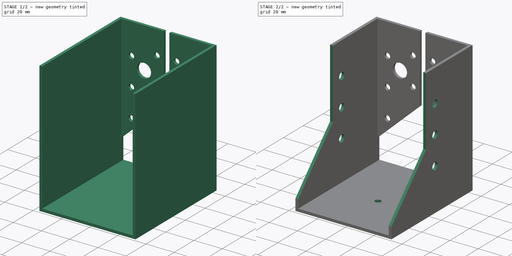
[diagram: build sequence overview — one tinted view per stage of 2, left to right]
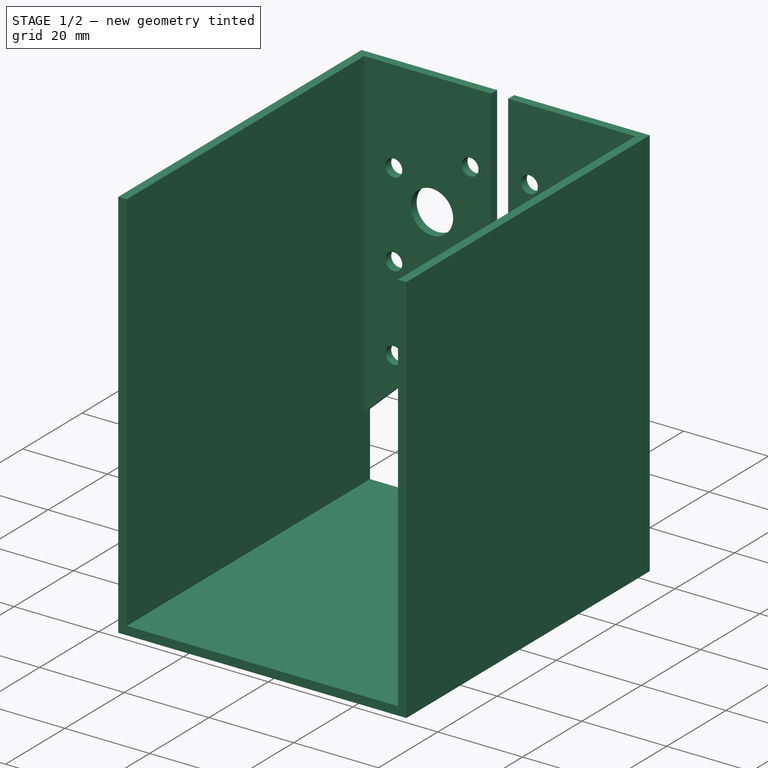
[diagram: stage 1 of 2 — iso view after this stage's code; geometry added in this stage tinted green]
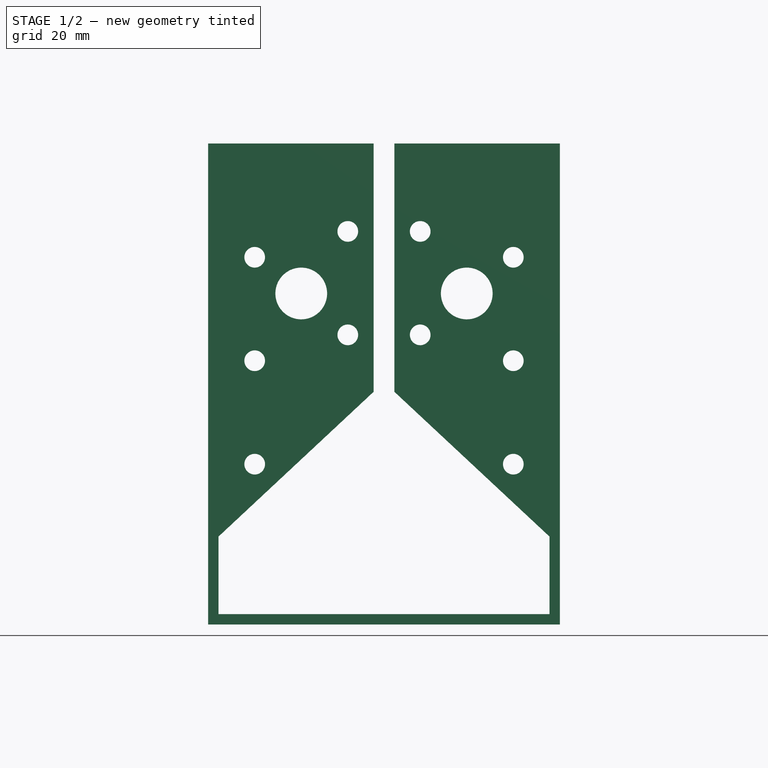
[diagram: stage 1 of 2 — front view after this stage's code; geometry added in this stage tinted green]
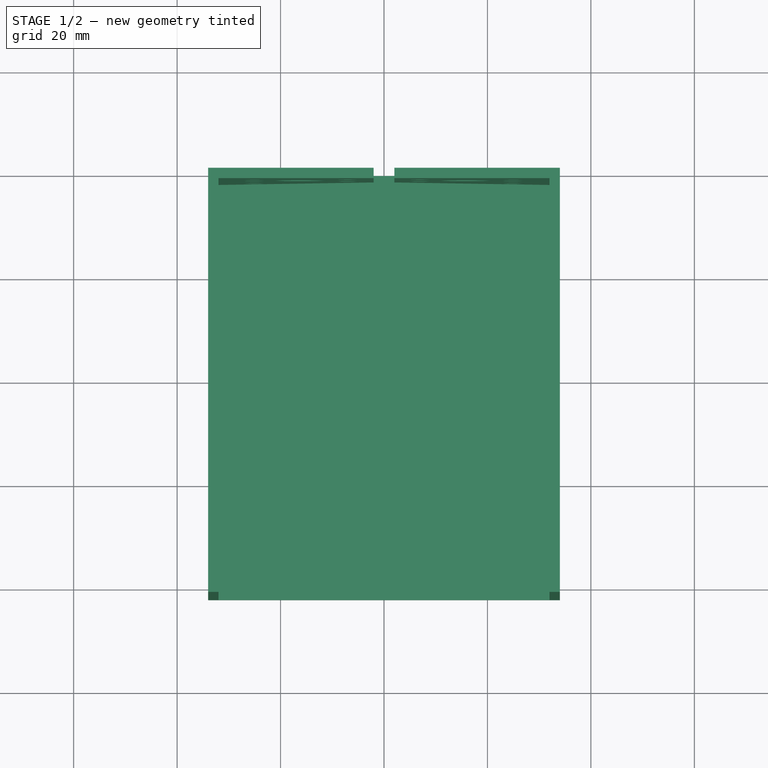
[diagram: stage 1 of 2 — top view after this stage's code; geometry added in this stage tinted green]
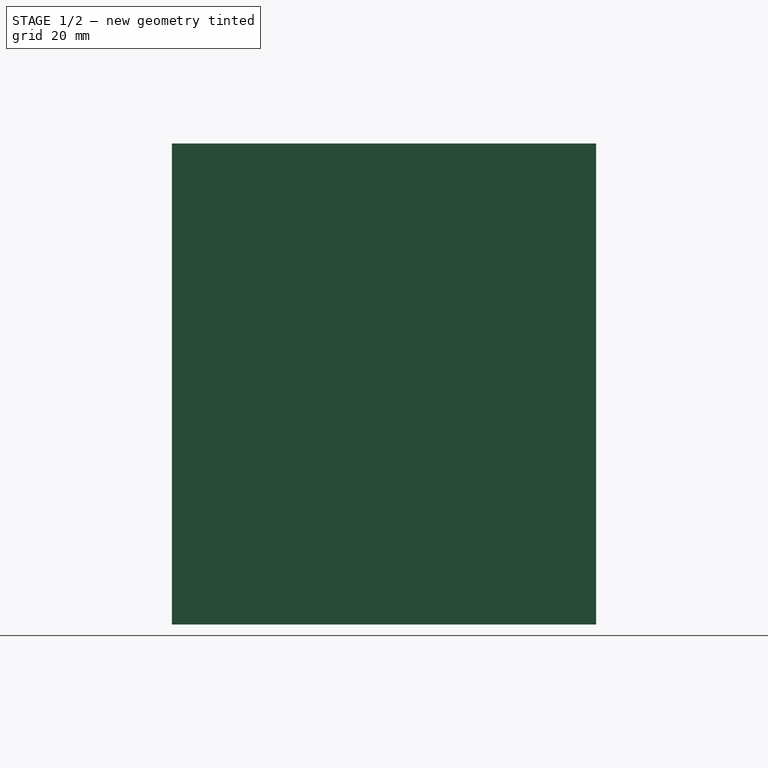
[diagram: stage 1 of 2 — right view after this stage's code; geometry added in this stage tinted green]
FCSTD DOCUMENT  (FreeCAD 0.15R4671 (Git))
Label: SAIT250_L64_H93
License: All rights reserved
LicenseURL: http://en.wikipedia.org/wiki/All_rights_reserved
objects: Sketcher::SketchObject×4, PartDesign::Pad×2, PartDesign::Pocket×2
note: 12 computed .brp shape members not serialized (recipe doc carries the construction recipe); baked Part::Feature solids carry a one-line shape summary decoded from their .brp

FEATURE [Sketcher::SketchObject] Sketch
  Placement = pos=(0,0,0) rot=(1,0,0;1.5708rad)
  sketch-geometry (24):
    g0: LineSegment StartX=2 StartY=93 StartZ=0 EndX=2 EndY=45 EndZ=0
    g1: LineSegment StartX=2 StartY=93 StartZ=0 EndX=34 EndY=93 EndZ=0
    g2: LineSegment StartX=34 StartY=93 StartZ=0 EndX=34 EndY=0 EndZ=0
    g3: LineSegment StartX=32 StartY=2 StartZ=0 EndX=-32 EndY=2 EndZ=0
    g4: LineSegment StartX=34 StartY=0 StartZ=0 EndX=-34 EndY=0 EndZ=0
    g5: LineSegment StartX=-34 StartY=0 StartZ=0 EndX=-34 EndY=93 EndZ=0
    g6: LineSegment StartX=-34 StartY=93 StartZ=0 EndX=-2 EndY=93 EndZ=0
    g7: LineSegment StartX=-2 StartY=93 StartZ=0 EndX=-2 EndY=45 EndZ=0
    g8: LineSegment StartX=32 StartY=2 StartZ=0 EndX=32 EndY=17 EndZ=0
    g9: LineSegment StartX=2 StartY=45 StartZ=0 EndX=32 EndY=17 EndZ=0
    g10: LineSegment StartX=-32 StartY=2 StartZ=0 EndX=-32 EndY=17 EndZ=0
    g11: LineSegment StartX=-32 StartY=17 StartZ=0 EndX=-2 EndY=45 EndZ=0
    g12: Circle CenterX=7 CenterY=76 CenterZ=0 NormalX=0 NormalY=0 NormalZ=1 Radius=2
    g13: Circle CenterX=7 CenterY=56 CenterZ=0 NormalX=0 NormalY=0 NormalZ=1 Radius=2
    g14: Circle CenterX=25 CenterY=71 CenterZ=0 NormalX=0 NormalY=0 NormalZ=1 Radius=2
    g15: Circle CenterX=25 CenterY=51 CenterZ=0 NormalX=0 NormalY=0 NormalZ=1 Radius=2
    g16: Circle CenterX=25 CenterY=31 CenterZ=0 NormalX=0 NormalY=0 NormalZ=1 Radius=2
    g17: Circle CenterX=16 CenterY=64 CenterZ=0 NormalX=0 NormalY=0 NormalZ=1 Radius=5
    g18: Circle CenterX=-7 CenterY=76 CenterZ=0 NormalX=0 NormalY=0 NormalZ=1 Radius=2
    g19: Circle CenterX=-7 CenterY=56 CenterZ=0 NormalX=0 NormalY=0 NormalZ=1 Radius=2
    g20: Circle CenterX=-25 CenterY=71 CenterZ=0 NormalX=0 NormalY=0 NormalZ=1 Radius=2
    g21: Circle CenterX=-25 CenterY=51 CenterZ=0 NormalX=0 NormalY=0 NormalZ=1 Radius=2
    g22: Circle CenterX=-25 CenterY=31 CenterZ=0 NormalX=0 NormalY=0 NormalZ=1 Radius=2
    g23: Circle CenterX=-16 CenterY=64 CenterZ=0 NormalX=0 NormalY=0 NormalZ=1 Radius=5
  constraints (65):
    c: Vertical(g0)
    c: DistanceX(g-1,g0) = 2
    c: Coincident(g1,g0)
    c: Horizontal(g1)
    c: DistanceX(g-1,g1) = 34
    c: DistanceY(g-1,g0) = 93
    c: Coincident(g2,g1)
    c: PointOnObject(g2,g-1)
    c: Vertical(g2)
    c: DistanceX(g3,g2) = 2
    c: DistanceY(g3,g2) = -2
    c: Horizontal(g3)
    c: Coincident(g4,g2)
    c: Horizontal(g4)
    c: Coincident(g5,g4)
    c: Vertical(g5)
    c: Coincident(g6,g5)
    c: Horizontal(g6)
    c: Coincident(g7,g6)
    c: Vertical(g7)
    c: Symmetric(g0,g6,g-2)
    c: Symmetric(g1,g5,g-2)
    c: Symmetric(g0,g7,g-2)
    c: Symmetric(g3,g3,g-2)
    c: DistanceY(g-1,g0) = 45
    c: Coincident(g8,g3)
    c: Vertical(g8)
    c: DistanceY(g3,g8) = 15
    c: Coincident(g9,g0)
    c: Coincident(g9,g8)
    c: Coincident(g10,g3)
    c: Vertical(g10)
    c: Coincident(g11,g10)
    c: Coincident(g11,g7)
    c: Symmetric(g8,g10,g-2)
    c: Radius(g17) = 5
    c: Equal(g14,g15)
    c: Equal(g15,g16)
    c: Equal(g16,g13)
    c: Equal(g13,g12)
    c: Radius(g14) = 2
    c: DistanceY(g13,g12) = 20
    c: DistanceY(g16,g15) = 20
    c: DistanceY(g15,g14) = 20
    c: Equal(g22,g19)
    c: Equal(g19,g21)
    c: Equal(g21,g20)
    c: Equal(g20,g18)
    c: Equal(g18,g14)
    c: Equal(g23,g17)
    c: Symmetric(g12,g18,g-2)
    c: Symmetric(g20,g14,g-2)
    c: Symmetric(g23,g17,g-2)
    c: Symmetric(g21,g15,g-2)
    c: Symmetric(g19,g13,g-2)
    c: Symmetric(g22,g16,g-2)
    c: DistanceX(g12,g17) = 9
    c: DistanceX(g17,g14) = 9
    c: DistanceX(g-1,g12) = 7
    c: DistanceX(g13,g17) = 9
    c: DistanceX(g17,g15) = 9
    c: DistanceX(g16,g17) = -9
    c: DistanceY(g-1,g17) = 64
    c: DistanceY(g-1,g16) = 31
    c: DistanceY(g-1,g13) = 56
FEATURE [PartDesign::Pad] Pad
  Length = 2
  Length2 = 100
  Placement = pos=(0,0,0) rot=(1,0,0;1.5708rad)
  Sketch = -> Sketch
  Type = 0
FEATURE [Sketcher::SketchObject] Sketch001
  ExternalGeometry = -> [Pad]
  Placement = pos=(0,-2,0) rot=(1,0,0;1.5708rad)
  Support = -> Pad [Face26]
  sketch-geometry (8):
    g0: LineSegment StartX=32 StartY=93 StartZ=0 EndX=34 EndY=93 EndZ=0
    g1: LineSegment StartX=34 StartY=93 StartZ=0 EndX=34 EndY=0 EndZ=0
    g2: LineSegment StartX=34 StartY=0 StartZ=0 EndX=-34 EndY=0 EndZ=0
    g3: LineSegment StartX=-34 StartY=0 StartZ=0 EndX=-34 EndY=93 EndZ=0
    g4: LineSegment StartX=-34 StartY=93 StartZ=0 EndX=-32 EndY=93 EndZ=0
    g5: LineSegment StartX=-32 StartY=93 StartZ=0 EndX=-32 EndY=2 EndZ=0
    g6: LineSegment StartX=32 StartY=93 StartZ=0 EndX=32 EndY=2 EndZ=0
    g7: LineSegment StartX=-32 StartY=2 StartZ=0 EndX=32 EndY=2 EndZ=0
  constraints (23):
    c: Horizontal(g0)
    c: Coincident(g1,g0)
    c: Vertical(g1)
    c: Coincident(g2,g1)
    c: Horizontal(g2)
    c: Coincident(g3,g2)
    c: Vertical(g3)
    c: Coincident(g4,g3)
    c: Horizontal(g4)
    c: Coincident(g5,g4)
    c: Vertical(g5)
    c: Coincident(g6,g0)
    c: Vertical(g6)
    c: Coincident(g7,g5)
    c: Coincident(g7,g6)
    c: Horizontal(g7)
    c: DistanceX(g0,g0) = 2
    c: DistanceY(g6,g1) = -2
    c: Equal(g0,g4)
    c: Coincident(g0,g-3)
    c: Coincident(g1,g-3)
    c: Coincident(g2,g-4)
    c: Coincident(g3,g-4)
FEATURE [PartDesign::Pad] Pad001
  Length = 80
  Length2 = 100
  Placement = pos=(0,0,0) rot=(1,0,0;1.5708rad)
  Sketch = -> Sketch001
  Type = 0
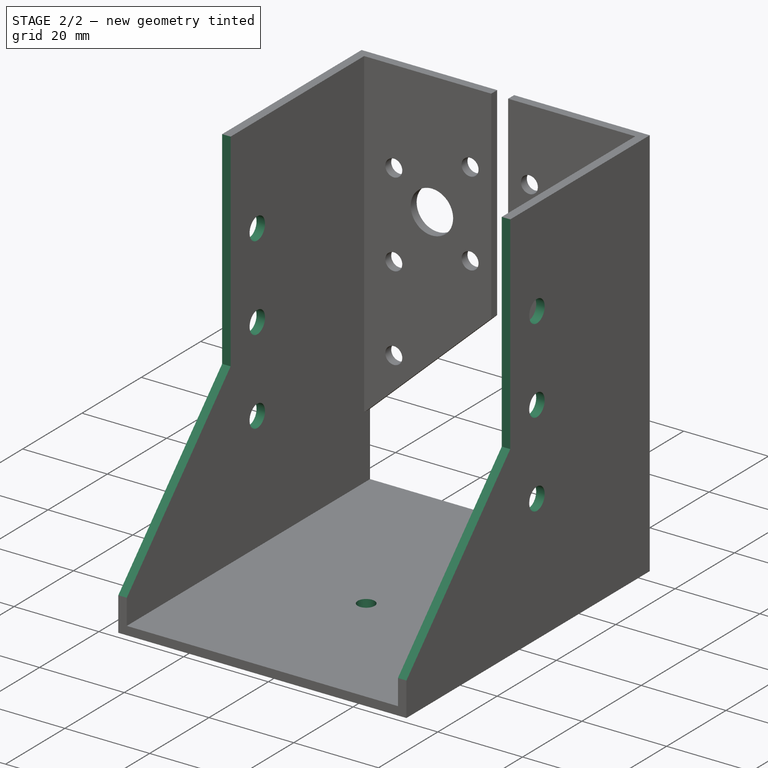
[diagram: stage 2 of 2 — iso view after this stage's code; geometry added in this stage tinted green]
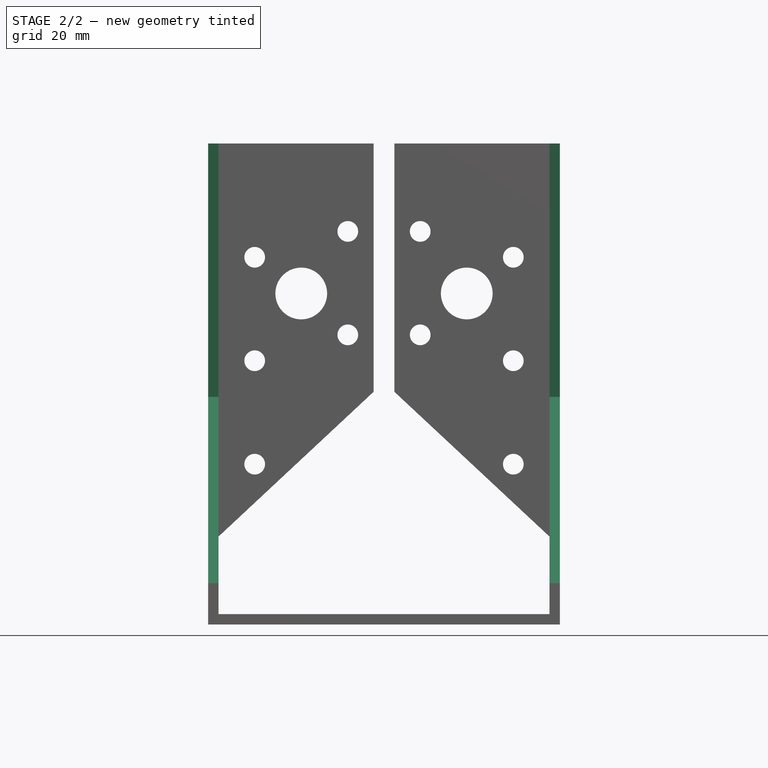
[diagram: stage 2 of 2 — front view after this stage's code; geometry added in this stage tinted green]
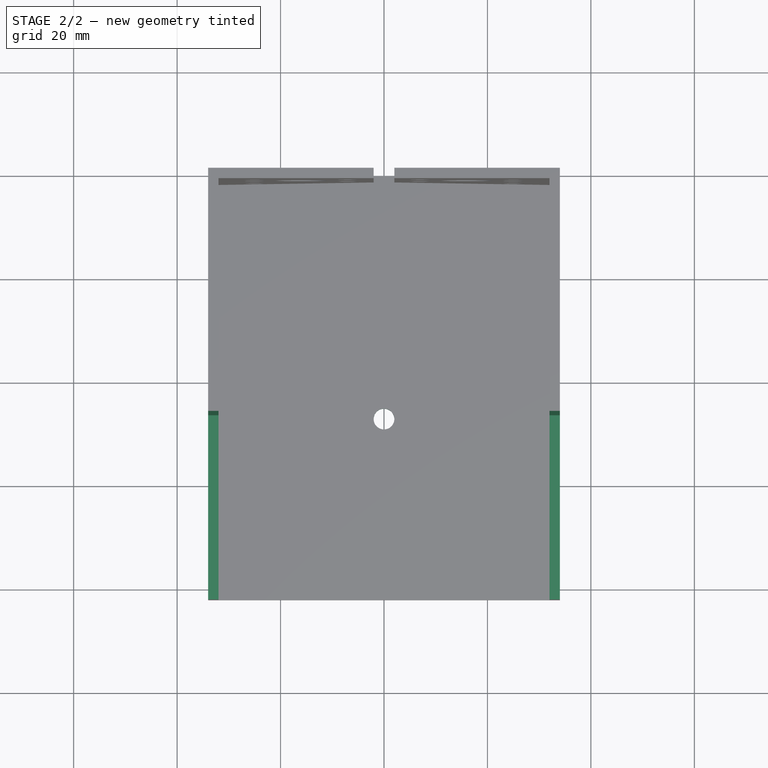
[diagram: stage 2 of 2 — top view after this stage's code; geometry added in this stage tinted green]
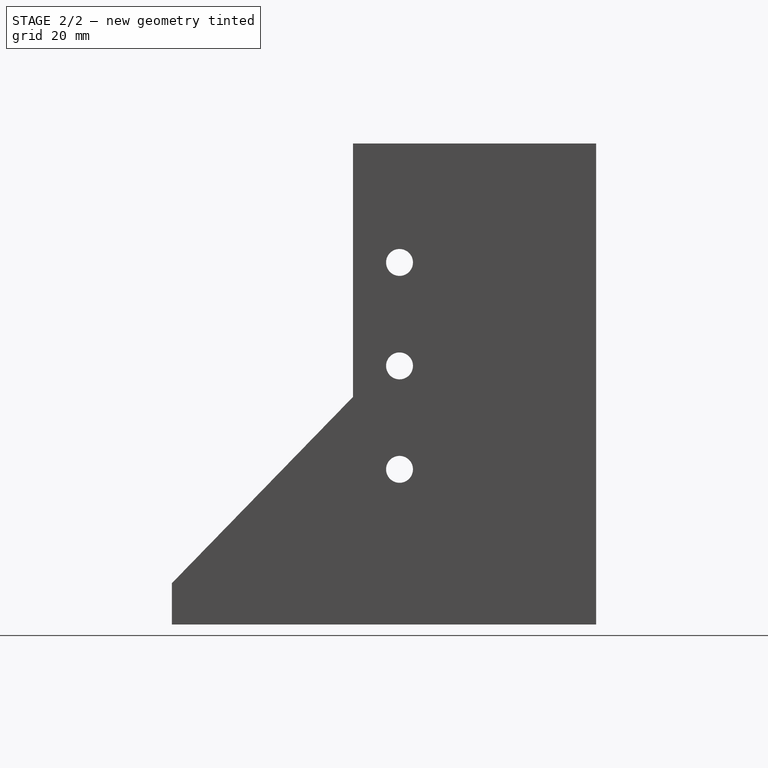
[diagram: stage 2 of 2 — right view after this stage's code; geometry added in this stage tinted green]
FEATURE [Sketcher::SketchObject] Sketch002
  ExternalGeometry = -> [Pad001]
  Placement = pos=(-34,0,0) rot=(0.707107,0,-0.707107;3.14159rad)
  Support = -> Pad001 [Face35]
  sketch-geometry (7):
    g0: LineSegment StartX=-93 StartY=82 StartZ=0 EndX=-8 EndY=82 EndZ=0
    g1: LineSegment StartX=-8 StartY=82 StartZ=0 EndX=-44 EndY=47 EndZ=0
    g2: LineSegment StartX=-93 StartY=82 StartZ=0 EndX=-93 EndY=47 EndZ=0
    g3: LineSegment StartX=-93 StartY=47 StartZ=0 EndX=-44 EndY=47 EndZ=0
    g4: Circle CenterX=-70 CenterY=38 CenterZ=0 NormalX=0 NormalY=0 NormalZ=1 Radius=2.6
    g5: Circle CenterX=-50 CenterY=38 CenterZ=0 NormalX=0 NormalY=0 NormalZ=1 Radius=2.6
    g6: Circle CenterX=-30 CenterY=38 CenterZ=0 NormalX=0 NormalY=0 NormalZ=1 Radius=2.6
  constraints (20):
    c: Coincident(g0,g-4)
    c: Horizontal(g0)
    c: DistanceX(g0,g-4) = 8
    c: Coincident(g1,g0)
    c: Coincident(g2,g0)
    c: Vertical(g2)
    c: Coincident(g3,g2)
    c: Horizontal(g3)
    c: Coincident(g3,g1)
    c: DistanceY(g2,g0) = 35
    c: DistanceX(g2,g1) = 49
    c: Equal(g6,g5)
    c: Equal(g5,g4)
    c: Radius(g6) = 2.6
    c: DistanceY(g-1,g6) = 38
    c: DistanceY(g-1,g5) = 38
    c: DistanceY(g-1,g4) = 38
    c: DistanceX(g4,g5) = 20
    c: DistanceX(g5,g6) = 20
    c: DistanceX(g-1,g6) = -30
FEATURE [PartDesign::Pocket] Pocket
  Length = 5
  Placement = pos=(0,0,0) rot=(1,0,0;1.5708rad)
  Sketch = -> Sketch002
  Type = 1
FEATURE [Sketcher::SketchObject] Sketch003
  Placement = pos=(0,0,2) rot=(0,0,1;3.14159rad)
  Support = -> Pocket [Face31]
  sketch-geometry (1):
    g0: Circle CenterX=0 CenterY=47 CenterZ=0 NormalX=0 NormalY=0 NormalZ=1 Radius=2
  constraints (3):
    c: PointOnObject(g0,g-2)
    c: Radius(g0) = 2
    c: DistanceY(g-1,g0) = 47
FEATURE [PartDesign::Pocket] Pocket001
  Length = 5
  Placement = pos=(0,0,0) rot=(1,0,0;1.5708rad)
  Sketch = -> Sketch003
  Type = 0
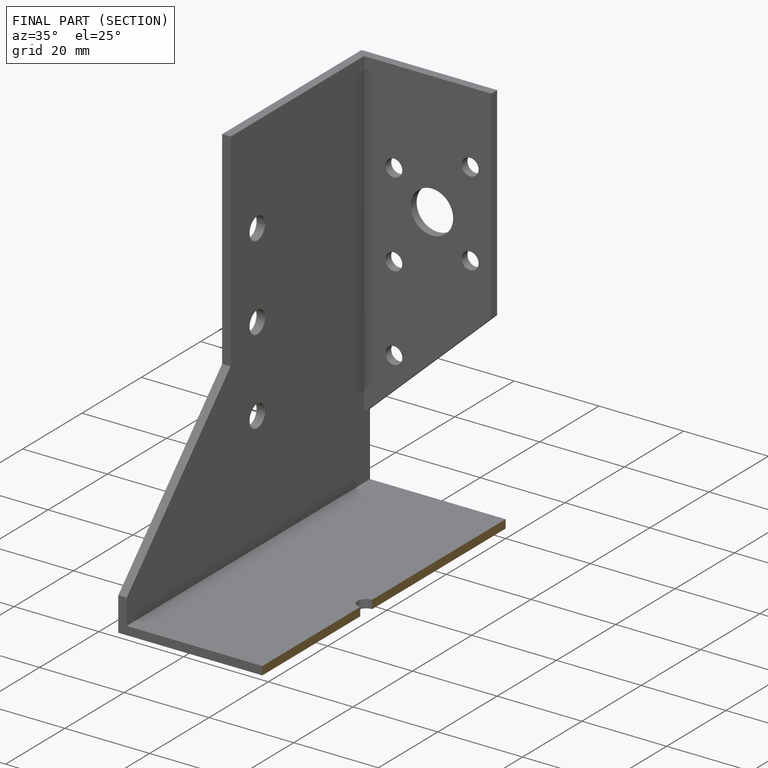
[diagram: finished part — half-section view (interior)]
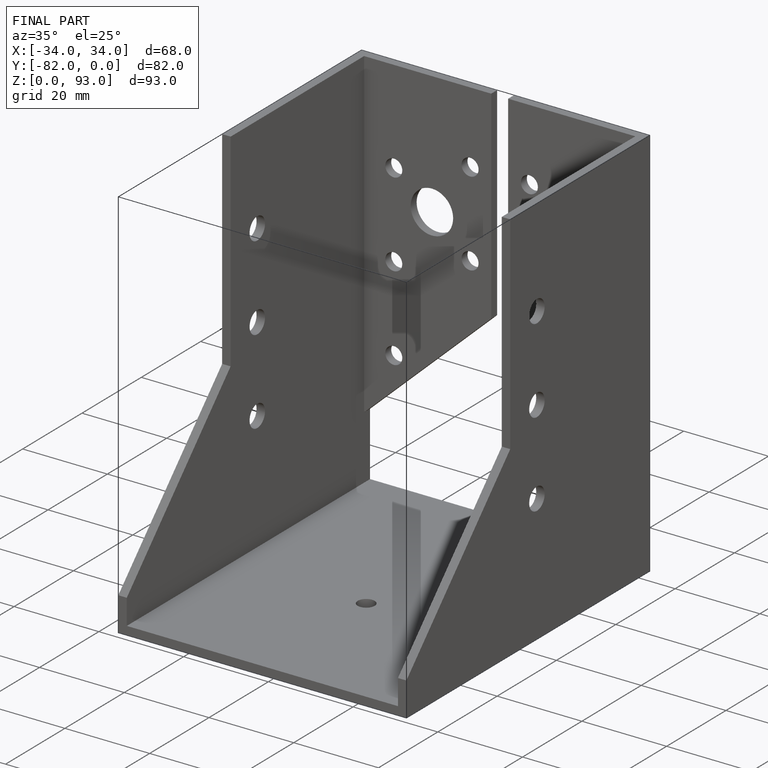
[diagram: finished part — iso view with bounding-box wireframe]
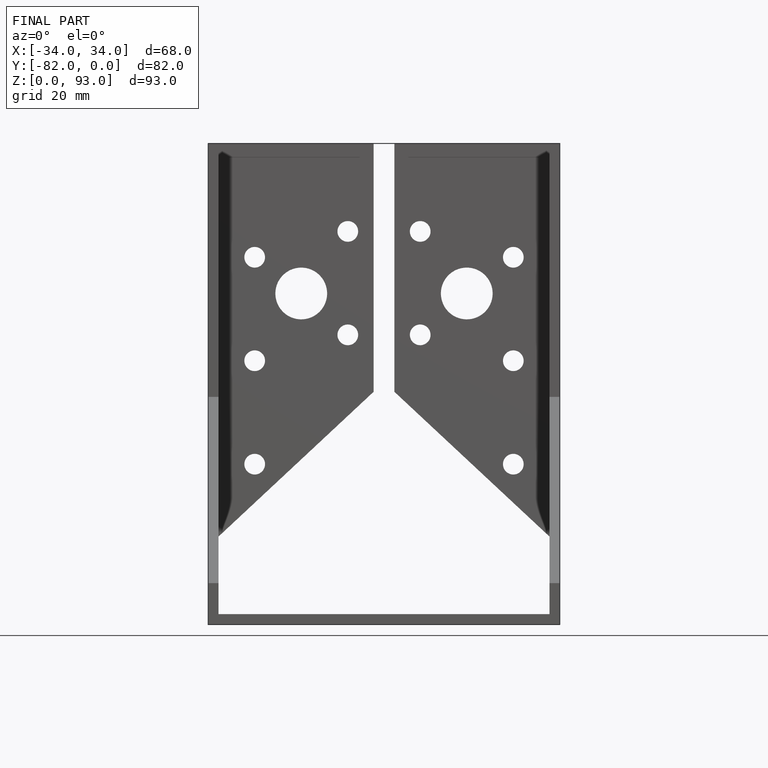
[diagram: finished part — front view with bounding-box wireframe]
